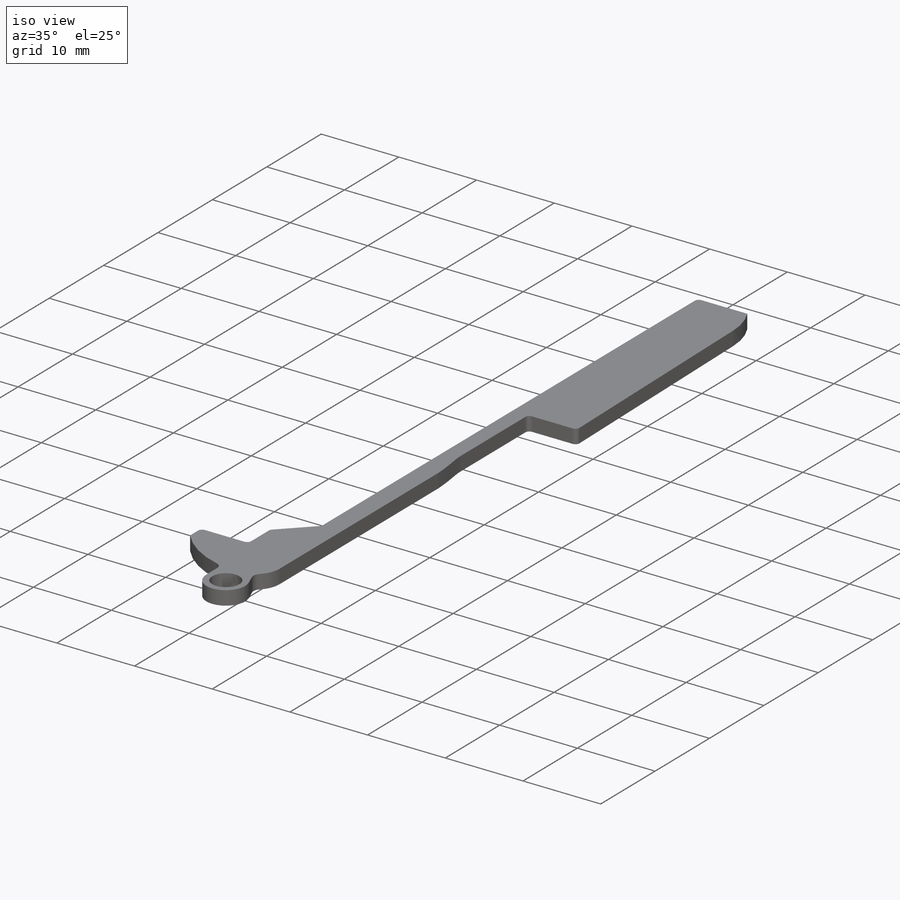
[diagram: iso view]
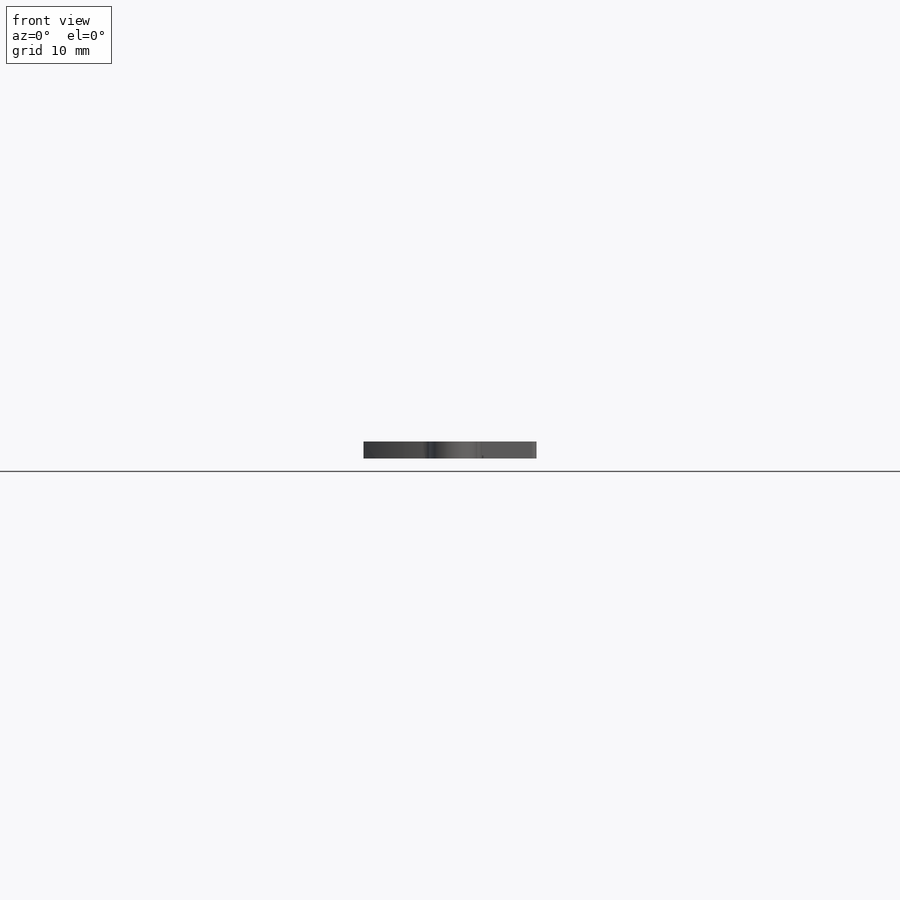
[diagram: front view]
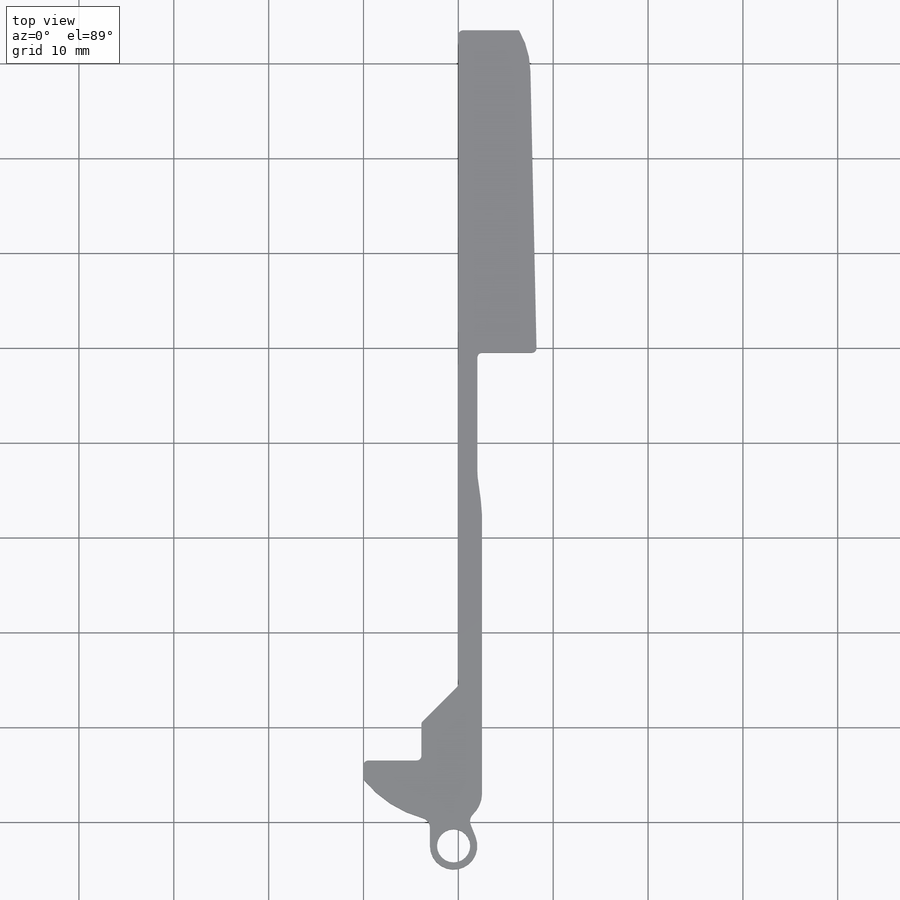
[diagram: top view]
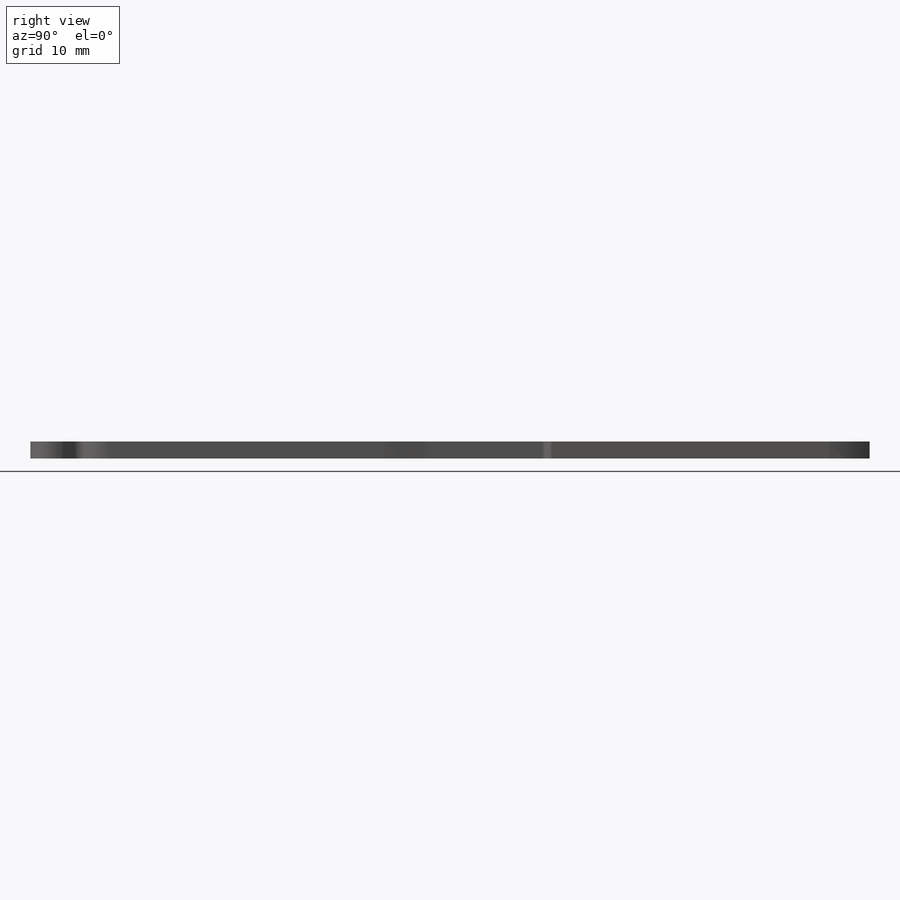
[diagram: right view]
SOLIDWORKS PART (.sldprt)
format: sldprt  version: not decoded by parser v0  size: 218,112 bytes
history: native  units: mm
features: sketch x2, extrude x2, fillet x2, material x1 (+11 scaffold rows collapsed)
feature tree (18):
  scaffold x11  (default folders/planes/origin — collapsed)
  material  "Material <not specified>"
  sketch  "Sketch1"  dims[c1.D11=~2.204683mm c1.D12=9.0mm c1.D1=83.5mm c1.D2=18.25mm c1.D3=1.85mm c1.D4=34.0mm c1.D5=4.5mm c1.D6=2.0mm c1.D7=6.1mm c1.D8=4.0mm c1.D9=~4.21405mm c2.D9=45.0deg c2.D10=~29.769042mm c3.D10=1.25deg c3.D11=3.9mm c3.D13=~4.497868mm c4.D13=88.75deg c5.D13=6.25mm c5.D14=12.32mm c5.D15=4.85mm c5.D16=29.26mm c5.D17=2.5mm]
  extrude  "Boss-Extrude1"  Depth=1.8mm
  fillet  "Fillet2"  Radius=0.5mm
  sketch  "Sketch3"  dims[D1=5.0mm D5=3.5mm D2=3.0mm D3=3.0mm D4=4.0mm]
  extrude  "Boss-Extrude2"  Depth=1.8mm
  fillet  "Fillet3"  Radius=1mm
decode coverage: 6 of 6 modeling features carry decoded parameters
note: ~ marks probable driven/reference dimensions
note: suppression state not decoded; provenance and decode notes live in map.json
